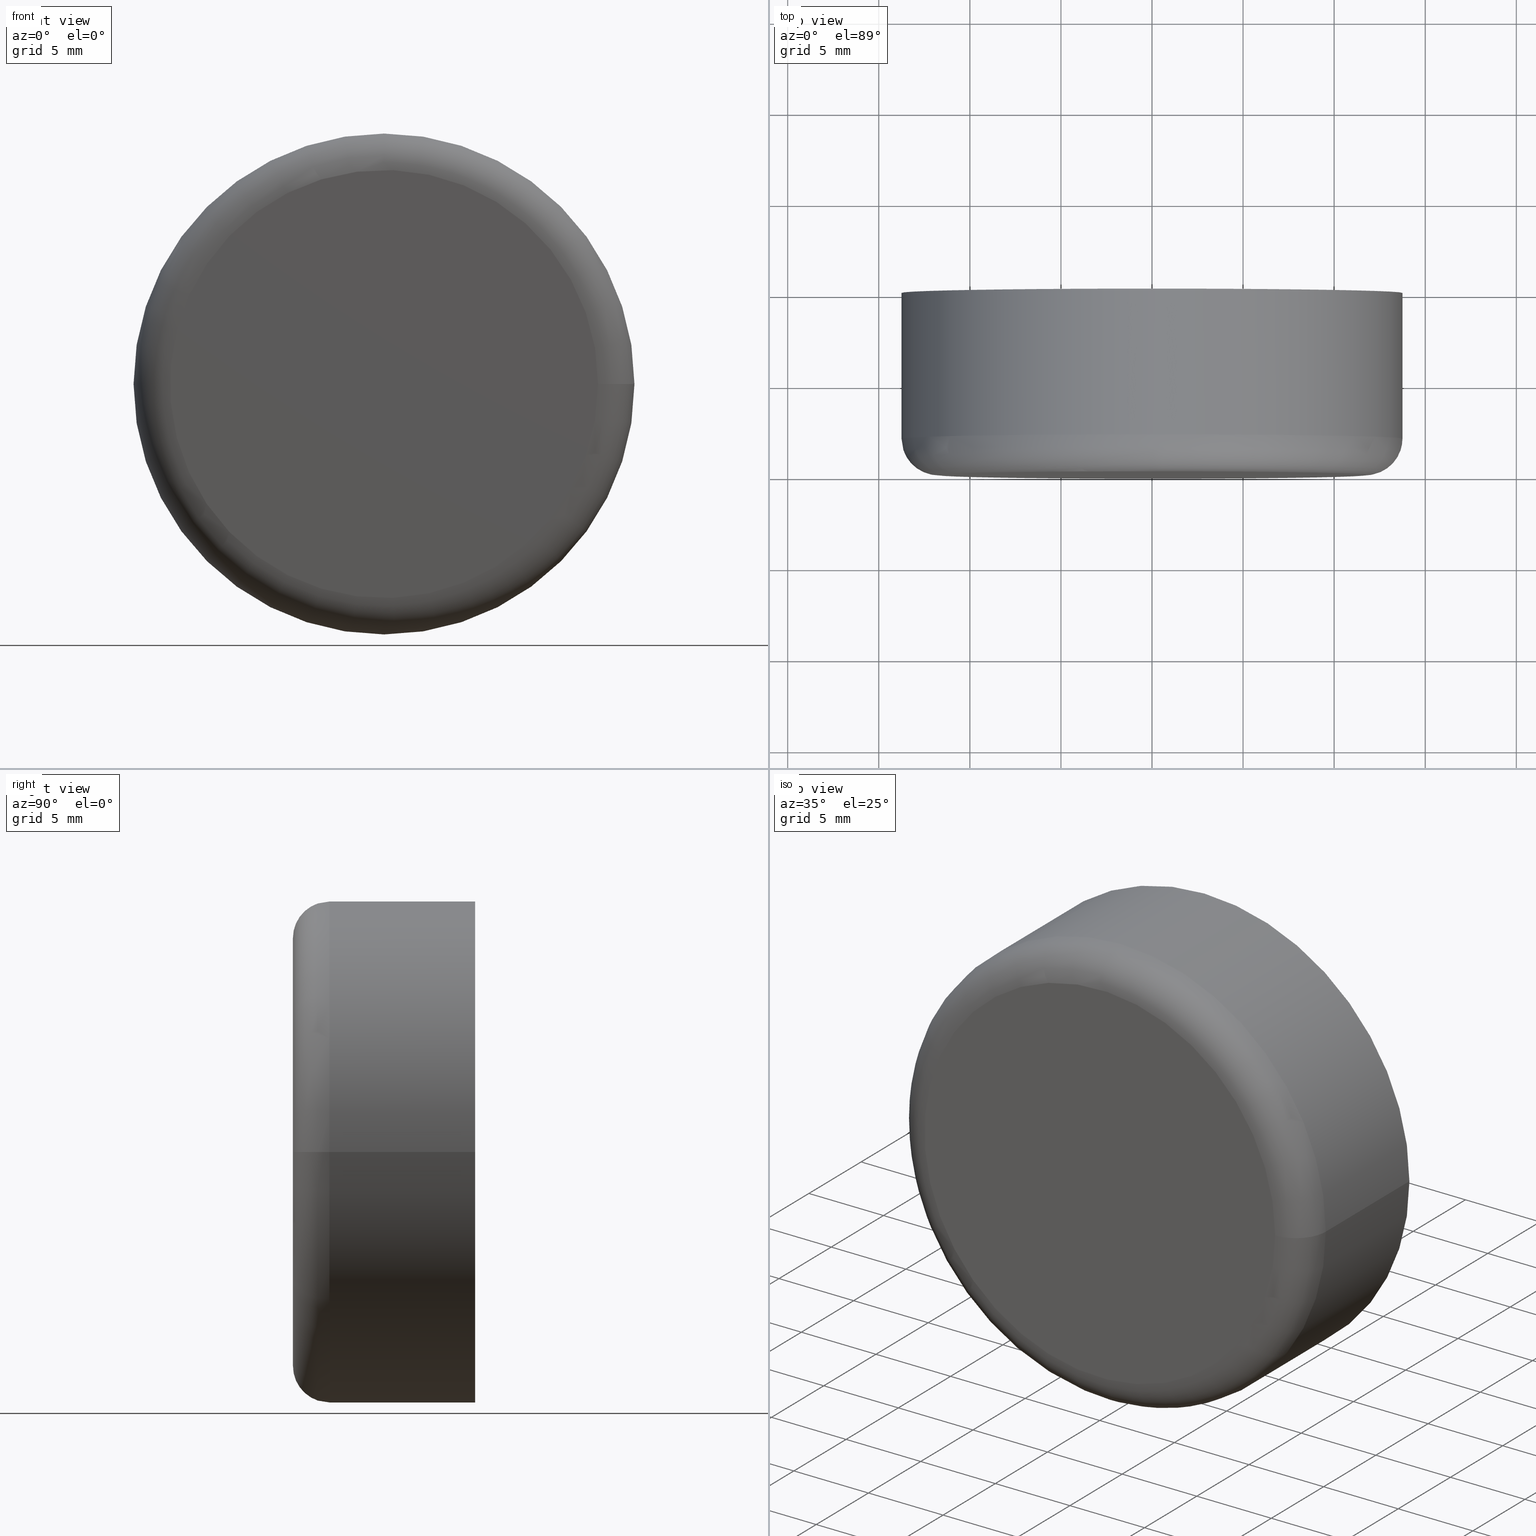
[diagram: canonical four-view strip — front | top / right | iso, engineering-drawing reading convention]
A machine part, canonical four-view strip (front | top / right | iso — engineering-drawing reading convention). The complete STEP part file that produces these views, byte-faithful:
ISO-10303-21;
HEADER;
FILE_DESCRIPTION(('STEP AP214'),
    '1');
FILE_NAME('���. KRT607',
    '2014-09-21T19:00:19',
    ('������ ������ ��������'),
    ('���������� ������'),
    'ASCON STEP Converter 1.3',
    'ASCON Math Kernel',
    '');
/*�� �������� ���������:

��� 8 919 123 02 50

info@stairs.center*/
FILE_SCHEMA(('AUTOMOTIVE_DESIGN { 1 0 10303 214 3 1 1}'));
ENDSEC;

DATA;
#1=SHAPE_REPRESENTATION('NONE',(#2),#6);
#2=AXIS2_PLACEMENT_3D('',#3,#4,#5);
#3=CARTESIAN_POINT('',(0.,0.,0.));
#4=DIRECTION('',(0.,0.,1.));
#5=DIRECTION('',(1.,0.,0.));
#6=(GEOMETRIC_REPRESENTATION_CONTEXT(3)GLOBAL_UNCERTAINTY_ASSIGNED_CONTEXT((#8))
GLOBAL_UNIT_ASSIGNED_CONTEXT((#7,#9,#10))REPRESENTATION_CONTEXT('NONE','NONE'));
#7=(LENGTH_UNIT()NAMED_UNIT(*)SI_UNIT(.MILLI.,.METRE.));
#8=UNCERTAINTY_MEASURE_WITH_UNIT(LENGTH_MEASURE(1.E-005),#7,'NONE','NONE');
#9=(NAMED_UNIT(*)PLANE_ANGLE_UNIT()SI_UNIT($,.RADIAN.));
#10=(NAMED_UNIT(*)SI_UNIT($,.STERADIAN.)SOLID_ANGLE_UNIT());
#11=SHAPE_DEFINITION_REPRESENTATION(#12,#1);
#12=PRODUCT_DEFINITION_SHAPE('NONE','NONE',#13);
#13=PRODUCT_DEFINITION('','UNSPECIFIED',#14,#22);
#14=PRODUCT_DEFINITION_FORMATION_WITH_SPECIFIED_SOURCE('ANY','UNSPECIFIED',#15,.NOT_KNOWN.);
#15=PRODUCT('',' ������','�� �������� ���������:

��� 8 919 123 02 50

info@stairs.center',
(#25));
#16=PERSON('UNSPECIFIED','������ ������ ��������','UNSPECIFIED',('UNSPECIFIED'),
('UNSPECIFIED'),('UNSPECIFIED'));
#17=ORGANIZATION('UNSPECIFIED','���������� ������','UNSPECIFIED');
#18=PERSON_AND_ORGANIZATION(#16,#17);
#19=PERSON_AND_ORGANIZATION_ROLE('design_owner');
#20=CC_DESIGN_PERSON_AND_ORGANIZATION_ASSIGNMENT(#18,#19,(#15));
#21=PRODUCT_RELATED_PRODUCT_CATEGORY('detail','',(#15));
#22=DESIGN_CONTEXT('detailed design',#23,'design');
#23=APPLICATION_CONTEXT('configuration controlled 3d designs of mechanical parts and assemblies');
#24=APPLICATION_PROTOCOL_DEFINITION('international standard','automotive_design',
2011,#23);
#25=MECHANICAL_CONTEXT('NONE',#23,'mechanical');
#26=CC_DESIGN_DATE_AND_TIME_ASSIGNMENT(#27,#31,(#13));
#27=DATE_AND_TIME(#28,#29);
#28=CALENDAR_DATE(0,1,1);
#29=LOCAL_TIME(0,0,0.,#30);
#30=COORDINATED_UNIVERSAL_TIME_OFFSET(0,0,.AHEAD.);
#31=DATE_TIME_ROLE('creation_date');
#32=CC_DESIGN_APPROVAL(#33,(#13));
#33=APPROVAL(#34,'UNSPECIFIED');
#34=APPROVAL_STATUS('not_yet_approved');
#35=APPROVAL_DATE_TIME(#36,#33);
#36=DATE_AND_TIME(#37,#38);
#37=CALENDAR_DATE(0,1,1);
#38=LOCAL_TIME(0,0,0.,#39);
#39=COORDINATED_UNIVERSAL_TIME_OFFSET(0,0,.AHEAD.);
#40=DERIVED_UNIT((#44,#41));
#41=DERIVED_UNIT_ELEMENT(#42,-1.);
#42=VOLUME_UNIT(#43);
#43=DIMENSIONAL_EXPONENTS(3.,0.,0.,0.,0.,0.,0.);
#44=(NAMED_UNIT($)MASS_UNIT()SI_UNIT($,.GRAM.));
#45=MANIFOLD_SOLID_BREP('',#46);
#46=CLOSED_SHELL('',(#58,#67,#76,#85,#94,#103,#112));
#47=COLOUR_RGB($,0.564705882352941,0.564705882352941,0.564705882352941);
#48=FILL_AREA_STYLE_COLOUR($,#47);
#49=FILL_AREA_STYLE($,(#48));
#50=SURFACE_STYLE_FILL_AREA(#49);
#51=SURFACE_SIDE_STYLE('',(#50));
#52=SURFACE_STYLE_USAGE(.BOTH.,#51);
#53=PRESENTATION_STYLE_ASSIGNMENT((#52));
#54=MECHANICAL_DESIGN_GEOMETRIC_PRESENTATION_REPRESENTATION('NONE',(#55,#66,#75,
#84,#93,#102,#111,#120),#6);
#55=STYLED_ITEM('',(#53),#45);
#56=ADVANCED_BREP_SHAPE_REPRESENTATION('NONE',(#45),#6);
#57=SHAPE_REPRESENTATION_RELATIONSHIP('','',#1,#56);
#58=ADVANCED_FACE('',(#121,#123),#125,.F.);
#59=COLOUR_RGB($,0.564705882352941,0.564705882352941,0.564705882352941);
#60=FILL_AREA_STYLE_COLOUR($,#59);
#61=FILL_AREA_STYLE($,(#60));
#62=SURFACE_STYLE_FILL_AREA(#61);
#63=SURFACE_SIDE_STYLE('',(#62));
#64=SURFACE_STYLE_USAGE(.BOTH.,#63);
#65=PRESENTATION_STYLE_ASSIGNMENT((#64));
#66=STYLED_ITEM('',(#65),#58);
#67=ADVANCED_FACE('',(#130),#132,.T.);
#68=COLOUR_RGB($,0.564705882352941,0.564705882352941,0.564705882352941);
#69=FILL_AREA_STYLE_COLOUR($,#68);
#70=FILL_AREA_STYLE($,(#69));
#71=SURFACE_STYLE_FILL_AREA(#70);
#72=SURFACE_SIDE_STYLE('',(#71));
#73=SURFACE_STYLE_USAGE(.BOTH.,#72);
#74=PRESENTATION_STYLE_ASSIGNMENT((#73));
#75=STYLED_ITEM('',(#74),#67);
#76=ADVANCED_FACE('',(#137,#139),#141,.F.);
#77=COLOUR_RGB($,0.564705882352941,0.564705882352941,0.564705882352941);
#78=FILL_AREA_STYLE_COLOUR($,#77);
#79=FILL_AREA_STYLE($,(#78));
#80=SURFACE_STYLE_FILL_AREA(#79);
#81=SURFACE_SIDE_STYLE('',(#80));
#82=SURFACE_STYLE_USAGE(.BOTH.,#81);
#83=PRESENTATION_STYLE_ASSIGNMENT((#82));
#84=STYLED_ITEM('',(#83),#76);
#85=ADVANCED_FACE('',(#146,#148),#150,.T.);
#86=COLOUR_RGB($,0.564705882352941,0.564705882352941,0.564705882352941);
#87=FILL_AREA_STYLE_COLOUR($,#86);
#88=FILL_AREA_STYLE($,(#87));
#89=SURFACE_STYLE_FILL_AREA(#88);
#90=SURFACE_SIDE_STYLE('',(#89));
#91=SURFACE_STYLE_USAGE(.BOTH.,#90);
#92=PRESENTATION_STYLE_ASSIGNMENT((#91));
#93=STYLED_ITEM('',(#92),#85);
#94=ADVANCED_FACE('',(#155,#157),#159,.T.);
#95=COLOUR_RGB($,0.564705882352941,0.564705882352941,0.564705882352941);
#96=FILL_AREA_STYLE_COLOUR($,#95);
#97=FILL_AREA_STYLE($,(#96));
#98=SURFACE_STYLE_FILL_AREA(#97);
#99=SURFACE_SIDE_STYLE('',(#98));
#100=SURFACE_STYLE_USAGE(.BOTH.,#99);
#101=PRESENTATION_STYLE_ASSIGNMENT((#100));
#102=STYLED_ITEM('',(#101),#94);
#103=ADVANCED_FACE('',(#164,#166),#168,.T.);
#104=COLOUR_RGB($,0.564705882352941,0.564705882352941,0.564705882352941);
#105=FILL_AREA_STYLE_COLOUR($,#104);
#106=FILL_AREA_STYLE($,(#105));
#107=SURFACE_STYLE_FILL_AREA(#106);
#108=SURFACE_SIDE_STYLE('',(#107));
#109=SURFACE_STYLE_USAGE(.BOTH.,#108);
#110=PRESENTATION_STYLE_ASSIGNMENT((#109));
#111=STYLED_ITEM('',(#110),#103);
#112=ADVANCED_FACE('',(#173),#175,.F.);
#113=COLOUR_RGB($,0.564705882352941,0.564705882352941,0.564705882352941);
#114=FILL_AREA_STYLE_COLOUR($,#113);
#115=FILL_AREA_STYLE($,(#114));
#116=SURFACE_STYLE_FILL_AREA(#115);
#117=SURFACE_SIDE_STYLE('',(#116));
#118=SURFACE_STYLE_USAGE(.BOTH.,#117);
#119=PRESENTATION_STYLE_ASSIGNMENT((#118));
#120=STYLED_ITEM('',(#119),#112);
#121=FACE_OUTER_BOUND('',#122,.T.);
#122=EDGE_LOOP('',(#180));
#123=FACE_OUTER_BOUND('',#124,.T.);
#124=EDGE_LOOP('',(#181));
#125=CYLINDRICAL_SURFACE('',#126,12.95);
#126=AXIS2_PLACEMENT_3D('',#127,#128,#129);
#127=CARTESIAN_POINT('',(0.,0.,0.));
#128=DIRECTION('',(0.,1.,0.));
#129=DIRECTION('',(1.,0.,0.));
#130=FACE_BOUND('',#131,.T.);
#131=EDGE_LOOP('',(#182));
#132=PLANE('',#133);
#133=AXIS2_PLACEMENT_3D('',#134,#135,#136);
#134=CARTESIAN_POINT('',(0.,0.8,0.));
#135=DIRECTION('',(-0.,1.,0.));
#136=DIRECTION('',(1.,0.,0.));
#137=FACE_OUTER_BOUND('',#138,.T.);
#138=EDGE_LOOP('',(#183));
#139=FACE_OUTER_BOUND('',#140,.T.);
#140=EDGE_LOOP('',(#184));
#141=TOROIDAL_SURFACE('',#142,11.75,1.2);
#142=AXIS2_PLACEMENT_3D('',#143,#144,#145);
#143=CARTESIAN_POINT('',(0.,2.,0.));
#144=DIRECTION('',(-0.,1.,0.));
#145=DIRECTION('',(1.,0.,0.));
#146=FACE_BOUND('',#147,.T.);
#147=EDGE_LOOP('',(#185));
#148=FACE_BOUND('',#149,.T.);
#149=EDGE_LOOP('',(#186));
#150=PLANE('',#151);
#151=AXIS2_PLACEMENT_3D('',#152,#153,#154);
#152=CARTESIAN_POINT('',(0.,10.,0.));
#153=DIRECTION('',(-0.,1.,0.));
#154=DIRECTION('',(1.,0.,0.));
#155=FACE_OUTER_BOUND('',#156,.T.);
#156=EDGE_LOOP('',(#187));
#157=FACE_OUTER_BOUND('',#158,.T.);
#158=EDGE_LOOP('',(#188));
#159=CYLINDRICAL_SURFACE('',#160,13.75);
#160=AXIS2_PLACEMENT_3D('',#161,#162,#163);
#161=CARTESIAN_POINT('',(0.,0.,0.));
#162=DIRECTION('',(0.,1.,0.));
#163=DIRECTION('',(1.,0.,0.));
#164=FACE_OUTER_BOUND('',#165,.T.);
#165=EDGE_LOOP('',(#189));
#166=FACE_OUTER_BOUND('',#167,.T.);
#167=EDGE_LOOP('',(#190));
#168=TOROIDAL_SURFACE('',#169,11.75,2.);
#169=AXIS2_PLACEMENT_3D('',#170,#171,#172);
#170=CARTESIAN_POINT('',(0.,2.,0.));
#171=DIRECTION('',(-0.,1.,0.));
#172=DIRECTION('',(1.,0.,0.));
#173=FACE_BOUND('',#174,.T.);
#174=EDGE_LOOP('',(#191));
#175=PLANE('',#176);
#176=AXIS2_PLACEMENT_3D('',#177,#178,#179);
#177=CARTESIAN_POINT('',(0.,0.,0.));
#178=DIRECTION('',(-0.,1.,0.));
#179=DIRECTION('',(1.,0.,0.));
#180=ORIENTED_EDGE('',*,*,#192,.T.);
#181=ORIENTED_EDGE('',*,*,#193,.F.);
#182=ORIENTED_EDGE('',*,*,#194,.T.);
#183=ORIENTED_EDGE('',*,*,#193,.T.);
#184=ORIENTED_EDGE('',*,*,#194,.F.);
#185=ORIENTED_EDGE('',*,*,#195,.T.);
#186=ORIENTED_EDGE('',*,*,#192,.F.);
#187=ORIENTED_EDGE('',*,*,#195,.F.);
#188=ORIENTED_EDGE('',*,*,#196,.T.);
#189=ORIENTED_EDGE('',*,*,#196,.F.);
#190=ORIENTED_EDGE('',*,*,#197,.T.);
#191=ORIENTED_EDGE('',*,*,#197,.F.);
#192=EDGE_CURVE('',#198,#198,#199,.T.);
#193=EDGE_CURVE('',#200,#200,#201,.T.);
#194=EDGE_CURVE('',#202,#202,#203,.T.);
#195=EDGE_CURVE('',#204,#204,#205,.T.);
#196=EDGE_CURVE('',#206,#206,#207,.T.);
#197=EDGE_CURVE('',#208,#208,#209,.T.);
#198=VERTEX_POINT('',#210);
#199=CIRCLE('',#211,12.95);
#200=VERTEX_POINT('',#215);
#201=CIRCLE('',#216,12.95);
#202=VERTEX_POINT('',#220);
#203=CIRCLE('',#221,11.75);
#204=VERTEX_POINT('',#225);
#205=CIRCLE('',#226,13.75);
#206=VERTEX_POINT('',#230);
#207=CIRCLE('',#231,13.75);
#208=VERTEX_POINT('',#235);
#209=CIRCLE('',#236,11.75);
#210=CARTESIAN_POINT('',(12.95,10.,3.17183520979164E-015));
#211=AXIS2_PLACEMENT_3D('',#212,#213,#214);
#212=CARTESIAN_POINT('',(0.,10.,0.));
#213=DIRECTION('',(-0.,1.,0.));
#214=DIRECTION('',(1.,0.,0.));
#215=CARTESIAN_POINT('',(12.95,2.,0.));
#216=AXIS2_PLACEMENT_3D('',#217,#218,#219);
#217=CARTESIAN_POINT('',(0.,2.,0.));
#218=DIRECTION('',(-0.,1.,0.));
#219=DIRECTION('',(1.,0.,0.));
#220=CARTESIAN_POINT('',(11.75,0.8,0.));
#221=AXIS2_PLACEMENT_3D('',#222,#223,#224);
#222=CARTESIAN_POINT('',(0.,0.8,0.));
#223=DIRECTION('',(-0.,1.,0.));
#224=DIRECTION('',(1.,0.,0.));
#225=CARTESIAN_POINT('',(13.75,10.,0.));
#226=AXIS2_PLACEMENT_3D('',#227,#228,#229);
#227=CARTESIAN_POINT('',(0.,10.,0.));
#228=DIRECTION('',(-0.,1.,0.));
#229=DIRECTION('',(1.,0.,0.));
#230=CARTESIAN_POINT('',(13.75,2.,1.68388934882761E-015));
#231=AXIS2_PLACEMENT_3D('',#232,#233,#234);
#232=CARTESIAN_POINT('',(0.,2.,0.));
#233=DIRECTION('',(-0.,1.,0.));
#234=DIRECTION('',(1.,0.,0.));
#235=CARTESIAN_POINT('',(11.75,0.,1.43895998899814E-015));
#236=AXIS2_PLACEMENT_3D('',#237,#238,#239);
#237=CARTESIAN_POINT('',(0.,0.,0.));
#238=DIRECTION('',(-0.,1.,0.));
#239=DIRECTION('',(1.,0.,0.));
ENDSEC;
END-ISO-10303-21;
